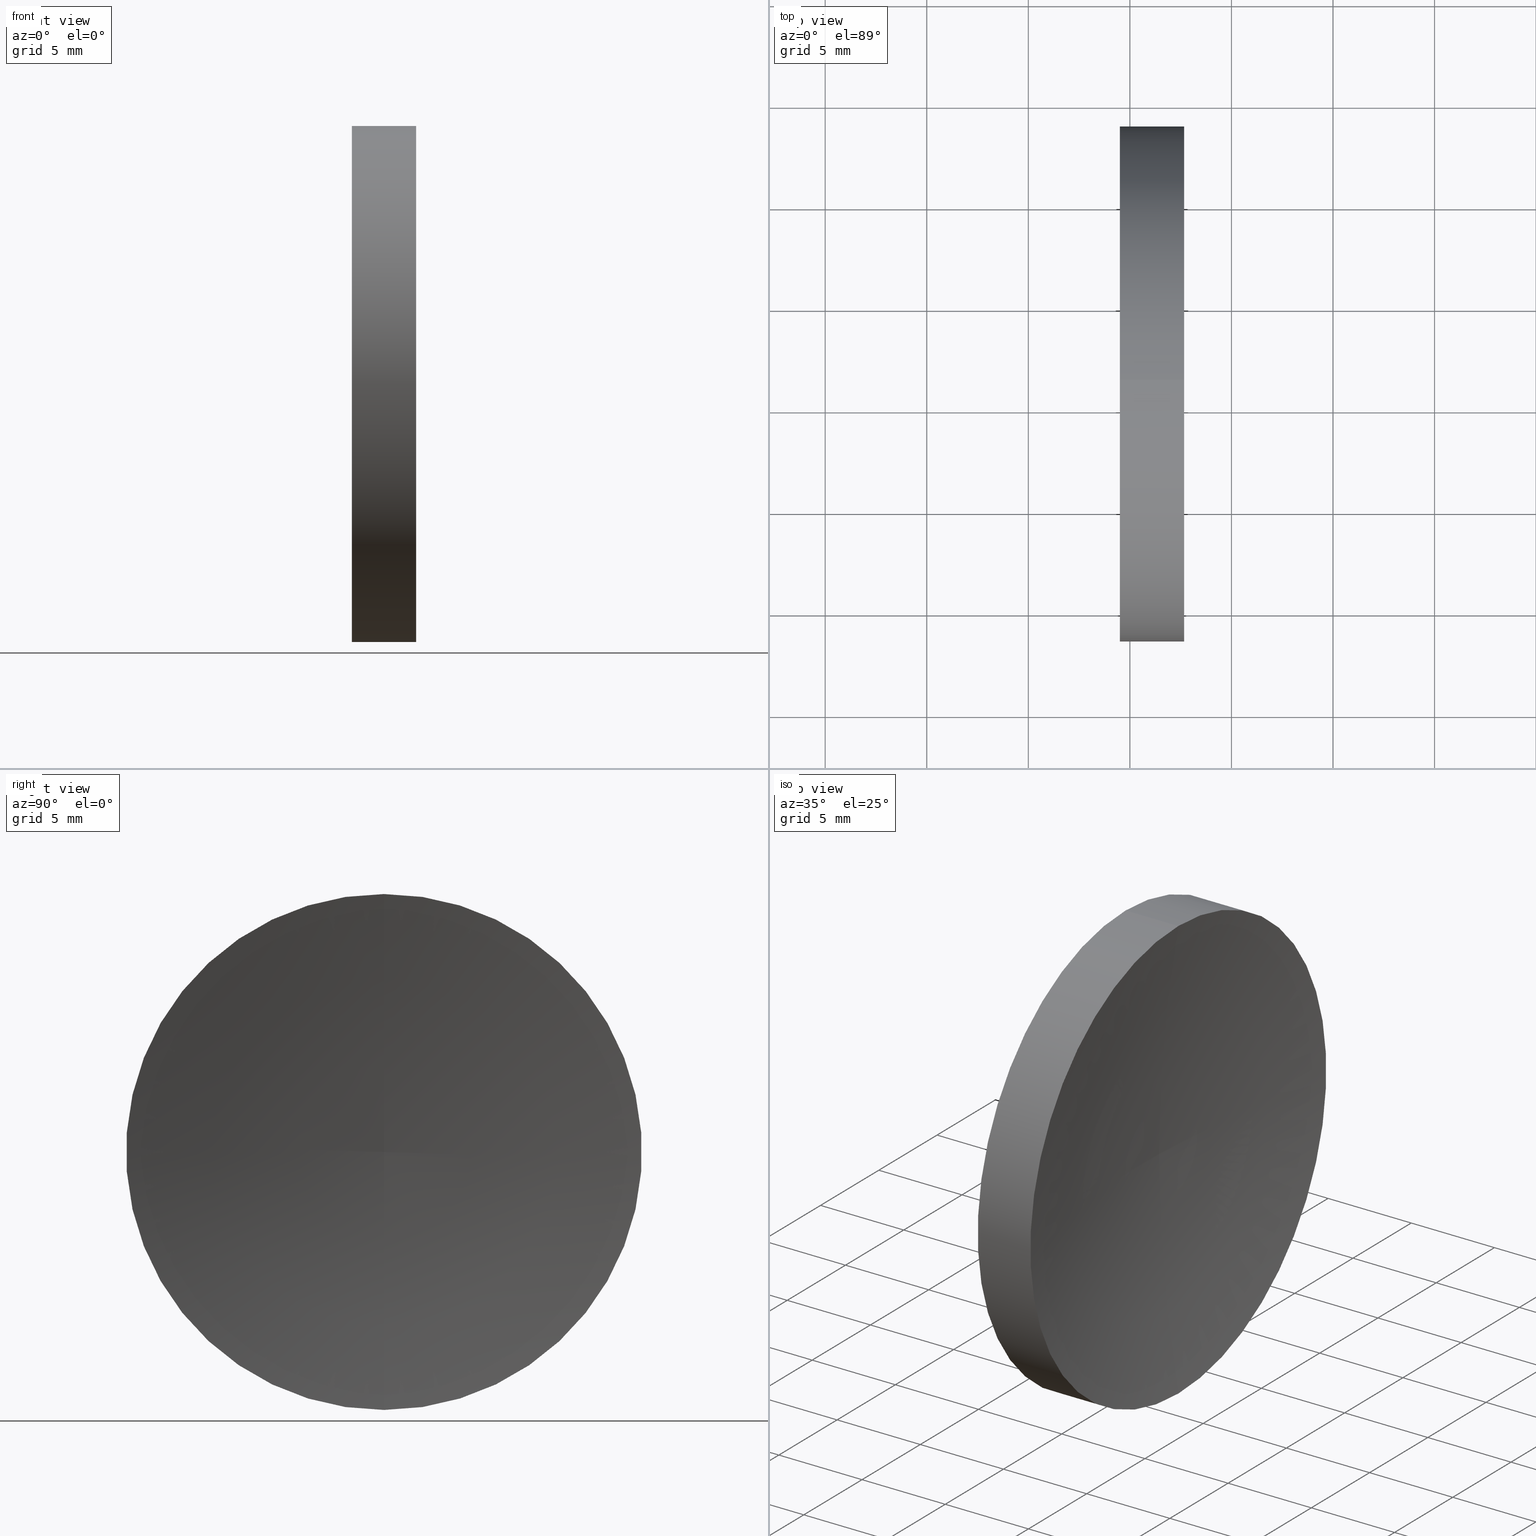
[diagram: canonical four-view strip — front | top / right | iso, engineering-drawing reading convention]
A machine part, canonical four-view strip (front | top / right | iso — engineering-drawing reading convention). The complete STEP part file that produces these views, byte-faithful:
ISO-10303-21;
HEADER;
FILE_DESCRIPTION (( 'STEP AP214' ),
    '1' );
FILE_NAME ('120321.STEP',
    '2019-06-27T02:17:19',
    ( '' ),
    ( '' ),
    'SwSTEP 2.0',
    'SolidWorks 2016',
    '' );
FILE_SCHEMA (( 'AUTOMOTIVE_DESIGN' ));
ENDSEC;

DATA;
#1 = ORIENTED_EDGE ( 'NONE', *, *, #77, .T. ) ;
#2 = CARTESIAN_POINT ( 'NONE',  ( 119.5068341785477100, 71.19398908659370300, 12.70000000000000300 ) ) ;
#3 = EDGE_LOOP ( 'NONE', ( #104, #115, #54, #50 ) ) ;
#4 = CARTESIAN_POINT ( 'NONE',  ( 122.6716689517454700, 71.19398908659370300, 0.0000000000000000000 ) ) ;
#5 = CARTESIAN_POINT ( 'NONE',  ( 0.0000000000000000000, 0.0000000000000000000, 0.0000000000000000000 ) ) ;
#6 =( LENGTH_UNIT ( ) NAMED_UNIT ( * ) SI_UNIT ( .MILLI., .METRE. ) );
#7 = DIRECTION ( 'NONE',  ( 0.0000000000000000000, 0.0000000000000000000, 1.000000000000000000 ) ) ;
#8 = CIRCLE ( 'NONE', #137, 70.09999999999999400 ) ;
#9 = CARTESIAN_POINT ( 'NONE',  ( 122.6716689517454700, 71.19398908659370300, 0.0000000000000000000 ) ) ;
#10 = ORIENTED_EDGE ( 'NONE', *, *, #69, .F. ) ;
#11 = ADVANCED_FACE ( 'NONE', ( #150 ), #147, .F. ) ;
#12 = PRODUCT ( '120321', '120321', '', ( #126 ) ) ;
#13 = LINE ( 'NONE', #106, #140 ) ;
#14 = COLOUR_RGB ( '',1.000000000000000000, 1.000000000000000000, 1.000000000000000000 ) ;
#15 = EDGE_LOOP ( 'NONE', ( #10, #39, #1, #110 ) ) ;
#16 = DIRECTION ( 'NONE',  ( -1.000000000000000000, -0.0000000000000000000, -0.0000000000000000000 ) ) ;
#17 = CIRCLE ( 'NONE', #105, 12.70000000000000300 ) ;
#18 = FILL_AREA_STYLE_COLOUR ( '', #14 ) ;
#19 = CARTESIAN_POINT ( 'NONE',  ( 122.6716689517454700, 71.19398908659370300, -12.69999999999999800 ) ) ;
#20 = ORIENTED_EDGE ( 'NONE', *, *, #59, .F. ) ;
#21 = SURFACE_STYLE_USAGE ( .BOTH. , #138 ) ;
#22 = CARTESIAN_POINT ( 'NONE',  ( 191.6068291606491400, 71.19398908659370300, -0.02610258377575003200 ) ) ;
#23 = PRESENTATION_STYLE_ASSIGNMENT (( #21 ) ) ;
#24 = DIRECTION ( 'NONE',  ( -1.000000000000000000, -0.0000000000000000000, -0.0000000000000000000 ) ) ;
#25 =( NAMED_UNIT ( * ) SI_UNIT ( $, .STERADIAN. ) SOLID_ANGLE_UNIT ( ) );
#26 = VERTEX_POINT ( 'NONE', #92 ) ;
#27 = ADVANCED_FACE ( 'NONE', ( #113 ), #87, .T. ) ;
#28 = EDGE_LOOP ( 'NONE', ( #52, #57 ) ) ;
#29 = AXIS2_PLACEMENT_3D ( 'NONE', #41, #136, #117 ) ;
#30 = DIRECTION ( 'NONE',  ( -1.000000000000000000, -0.0000000000000000000, -0.0000000000000000000 ) ) ;
#31 = CIRCLE ( 'NONE', #53, 12.70000000000000300 ) ;
#32 =( LENGTH_UNIT ( ) NAMED_UNIT ( * ) SI_UNIT ( .MILLI., .METRE. ) );
#33 = SURFACE_STYLE_USAGE ( .BOTH. , #123 ) ;
#34 = DIRECTION ( 'NONE',  ( 0.0000000000000000000, 0.0000000000000000000, 1.000000000000000000 ) ) ;
#35 = EDGE_CURVE ( 'NONE', #48, #83, #17, .T. ) ;
#36 = ORIENTED_EDGE ( 'NONE', *, *, #40, .T. ) ;
#37 = PRODUCT_DEFINITION_CONTEXT ( 'detailed design', #151, 'design' ) ;
#38 = FACE_OUTER_BOUND ( 'NONE', #28, .T. ) ;
#39 = ORIENTED_EDGE ( 'NONE', *, *, #127, .T. ) ;
#40 = EDGE_CURVE ( 'NONE', #145, #135, #45, .T. ) ;
#41 = CARTESIAN_POINT ( 'NONE',  ( 111.9552297575605700, 71.19398908659370300, 0.0000000000000000000 ) ) ;
#42 = PRODUCT_DEFINITION_SHAPE ( 'NONE', 'NONE',  #63 ) ;
#43 = CARTESIAN_POINT ( 'NONE',  ( 191.6068291606491400, 71.19398908659370300, 0.0000000000000000000 ) ) ;
#44 = AXIS2_PLACEMENT_3D ( 'NONE', #107, #82, #134 ) ;
#45 = CIRCLE ( 'NONE', #76, 70.09999999999999400 ) ;
#46 = AXIS2_PLACEMENT_3D ( 'NONE', #9, #24, #7 ) ;
#47 = DIRECTION ( 'NONE',  ( 0.0000000000000000000, 0.0000000000000000000, -1.000000000000000000 ) ) ;
#48 = VERTEX_POINT ( 'NONE', #2 ) ;
#49 = PRESENTATION_LAYER_ASSIGNMENT (  '', '', ( #156 ) ) ;
#50 = ORIENTED_EDGE ( 'NONE', *, *, #77, .F. ) ;
#51 = EDGE_CURVE ( 'NONE', #83, #48, #31, .T. ) ;
#52 = ORIENTED_EDGE ( 'NONE', *, *, #35, .T. ) ;
#53 = AXIS2_PLACEMENT_3D ( 'NONE', #162, #119, #79 ) ;
#54 = ORIENTED_EDGE ( 'NONE', *, *, #35, .F. ) ;
#55 = DIRECTION ( 'NONE',  ( 0.0000000000000000000, 0.0000000000000000000, 1.000000000000000000 ) ) ;
#56 = DIRECTION ( 'NONE',  ( 0.0000000000000000000, 0.0000000000000000000, 1.000000000000000000 ) ) ;
#57 = ORIENTED_EDGE ( 'NONE', *, *, #51, .T. ) ;
#58 = ADVANCED_FACE ( 'NONE', ( #166 ), #128, .F. ) ;
#59 = EDGE_CURVE ( 'NONE', #26, #145, #157, .T. ) ;
#60 = FILL_AREA_STYLE ('',( #18 ) ) ;
#61 = ADVANCED_BREP_SHAPE_REPRESENTATION ( '120321', ( #125, #144 ), #146 ) ;
#62 = EDGE_LOOP ( 'NONE', ( #102, #36, #155 ) ) ;
#63 = PRODUCT_DEFINITION ( 'δ֪', '', #158, #37 ) ;
#64 = UNCERTAINTY_MEASURE_WITH_UNIT (LENGTH_MEASURE( 1.000000000000000100E-005 ), #32, 'distance_accuracy_value', 'NONE');
#65 = DIRECTION ( 'NONE',  ( -1.000000000000000000, -0.0000000000000000000, -0.0000000000000000000 ) ) ;
#66 = DIRECTION ( 'NONE',  ( -1.000000000000000000, -0.0000000000000000000, -0.0000000000000000000 ) ) ;
#67 = CARTESIAN_POINT ( 'NONE',  ( 111.9552297575605700, 71.19398908659370300, 0.0000000000000000000 ) ) ;
#68 = VECTOR ( 'NONE', #66, 1000.000000000000000 ) ;
#69 = EDGE_CURVE ( 'NONE', #145, #83, #90, .T. ) ;
#70 = FILL_AREA_STYLE_COLOUR ( '', #124 ) ;
#71 = ADVANCED_FACE ( 'NONE', ( #73 ), #130, .T. ) ;
#72 = PLANE ( 'NONE',  #132 ) ;
#73 = FACE_OUTER_BOUND ( 'NONE', #15, .T. ) ;
#74 = CIRCLE ( 'NONE', #46, 12.70000000000000300 ) ;
#75 = PRESENTATION_STYLE_ASSIGNMENT (( #33 ) ) ;
#76 = AXIS2_PLACEMENT_3D ( 'NONE', #81, #159, #149 ) ;
#77 = EDGE_CURVE ( 'NONE', #26, #48, #13, .T. ) ;
#78 = MECHANICAL_DESIGN_GEOMETRIC_PRESENTATION_REPRESENTATION (  '', ( #156 ), #89 ) ;
#79 = DIRECTION ( 'NONE',  ( 0.0000000000000000000, 0.0000000000000000000, 1.000000000000000000 ) ) ;
#80 = EDGE_LOOP ( 'NONE', ( #116, #20, #163 ) ) ;
#81 = CARTESIAN_POINT ( 'NONE',  ( 191.6068291606491400, 71.19398908659370300, 0.02610258377575003200 ) ) ;
#82 = DIRECTION ( 'NONE',  ( -1.000000000000000000, -0.0000000000000000000, -0.0000000000000000000 ) ) ;
#83 = VERTEX_POINT ( 'NONE', #94 ) ;
#84 =( NAMED_UNIT ( * ) SI_UNIT ( $, .STERADIAN. ) SOLID_ANGLE_UNIT ( ) );
#85 =( LENGTH_UNIT ( ) NAMED_UNIT ( * ) SI_UNIT ( .MILLI., .METRE. ) );
#86 = DIRECTION ( 'NONE',  ( 0.0000000000000000000, -1.000000000000000000, 0.0000000000000000000 ) ) ;
#87 = CYLINDRICAL_SURFACE ( 'NONE', #98, 12.70000000000000300 ) ;
#88 = SURFACE_STYLE_FILL_AREA ( #164 ) ;
#89 =( GEOMETRIC_REPRESENTATION_CONTEXT ( 3 ) GLOBAL_UNCERTAINTY_ASSIGNED_CONTEXT ( ( #103 ) ) GLOBAL_UNIT_ASSIGNED_CONTEXT ( ( #6, #109, #25 ) ) REPRESENTATION_CONTEXT ( 'NONE', 'WORKASPACE' ) );
#90 = LINE ( 'NONE', #96, #68 ) ;
#91 = MECHANICAL_DESIGN_GEOMETRIC_PRESENTATION_REPRESENTATION (  '', ( #131 ), #129 ) ;
#92 = CARTESIAN_POINT ( 'NONE',  ( 122.6716689517454700, 71.19398908659370300, 12.69999999999999800 ) ) ;
#93 = DIRECTION ( 'NONE',  ( -1.000000000000000000, -0.0000000000000000000, -0.0000000000000000000 ) ) ;
#94 = CARTESIAN_POINT ( 'NONE',  ( 119.5068341785477100, 71.19398908659370300, -12.70000000000000300 ) ) ;
#95 = DIRECTION ( 'NONE',  ( 0.0000000000000000000, 0.0000000000000000000, 1.000000000000000000 ) ) ;
#96 = CARTESIAN_POINT ( 'NONE',  ( 111.9552297575605700, 71.19398908659370300, -12.70000000000000300 ) ) ;
#97 = APPLICATION_PROTOCOL_DEFINITION ( 'draft international standard', 'automotive_design', 1998, #100 ) ;
#98 = AXIS2_PLACEMENT_3D ( 'NONE', #67, #30, #56 ) ;
#99 = APPLICATION_PROTOCOL_DEFINITION ( 'draft international standard', 'automotive_design', 1998, #151 ) ;
#100 = APPLICATION_CONTEXT ( 'automotive_design' ) ;
#101 = DIRECTION ( 'NONE',  ( 0.0000000000000000000, 0.0000000000000000000, -1.000000000000000000 ) ) ;
#102 = ORIENTED_EDGE ( 'NONE', *, *, #127, .F. ) ;
#103 = UNCERTAINTY_MEASURE_WITH_UNIT (LENGTH_MEASURE( 1.000000000000000100E-005 ), #6, 'distance_accuracy_value', 'NONE');
#104 = ORIENTED_EDGE ( 'NONE', *, *, #59, .T. ) ;
#105 = AXIS2_PLACEMENT_3D ( 'NONE', #118, #65, #148 ) ;
#106 = CARTESIAN_POINT ( 'NONE',  ( 111.9552297575605700, 71.19398908659370300, 12.70000000000000300 ) ) ;
#107 = CARTESIAN_POINT ( 'NONE',  ( 191.6068291606491400, 71.19398908659370300, 0.0000000000000000000 ) ) ;
#108 = SHAPE_DEFINITION_REPRESENTATION ( #42, #61 ) ;
#109 =( NAMED_UNIT ( * ) PLANE_ANGLE_UNIT ( ) SI_UNIT ( $, .RADIAN. ) );
#110 = ORIENTED_EDGE ( 'NONE', *, *, #51, .F. ) ;
#111 = CARTESIAN_POINT ( 'NONE',  ( 119.5068341785477100, 71.19398908659370300, 0.0000000000000000000 ) ) ;
#112 = AXIS2_PLACEMENT_3D ( 'NONE', #4, #133, #55 ) ;
#113 = FACE_OUTER_BOUND ( 'NONE', #3, .T. ) ;
#114 = PRODUCT_RELATED_PRODUCT_CATEGORY ( 'part', '', ( #12 ) ) ;
#115 = ORIENTED_EDGE ( 'NONE', *, *, #69, .T. ) ;
#116 = ORIENTED_EDGE ( 'NONE', *, *, #40, .F. ) ;
#117 = DIRECTION ( 'NONE',  ( 0.0000000000000000000, 0.0000000000000000000, 1.000000000000000000 ) ) ;
#118 = CARTESIAN_POINT ( 'NONE',  ( 119.5068341785477100, 71.19398908659370300, 0.0000000000000000000 ) ) ;
#119 = DIRECTION ( 'NONE',  ( -1.000000000000000000, -0.0000000000000000000, -0.0000000000000000000 ) ) ;
#120 = CLOSED_SHELL ( 'NONE', ( #27, #11, #58, #71, #141 ) ) ;
#121 = AXIS2_PLACEMENT_3D ( 'NONE', #43, #16, #95 ) ;
#122 =( NAMED_UNIT ( * ) SI_UNIT ( $, .STERADIAN. ) SOLID_ANGLE_UNIT ( ) );
#123 = SURFACE_SIDE_STYLE ('',( #160 ) ) ;
#124 = COLOUR_RGB ( '',1.000000000000000000, 1.000000000000000000, 1.000000000000000000 ) ;
#125 = MANIFOLD_SOLID_BREP ( '��ת1', #120 ) ;
#126 = PRODUCT_CONTEXT ( 'NONE', #100, 'mechanical' ) ;
#127 = EDGE_CURVE ( 'NONE', #145, #26, #74, .T. ) ;
#128 = TOROIDAL_SURFACE ( 'NONE', #121, -0.02610258377575003200, 70.09999999999999400 ) ;
#129 =( GEOMETRIC_REPRESENTATION_CONTEXT ( 3 ) GLOBAL_UNCERTAINTY_ASSIGNED_CONTEXT ( ( #142 ) ) GLOBAL_UNIT_ASSIGNED_CONTEXT ( ( #85, #165, #122 ) ) REPRESENTATION_CONTEXT ( 'NONE', 'WORKASPACE' ) );
#130 = CYLINDRICAL_SURFACE ( 'NONE', #29, 12.70000000000000300 ) ;
#131 = STYLED_ITEM ( 'NONE', ( #75 ), #125 ) ;
#132 = AXIS2_PLACEMENT_3D ( 'NONE', #111, #139, #101 ) ;
#133 = DIRECTION ( 'NONE',  ( -1.000000000000000000, -0.0000000000000000000, -0.0000000000000000000 ) ) ;
#134 = DIRECTION ( 'NONE',  ( 0.0000000000000000000, 0.0000000000000000000, 1.000000000000000000 ) ) ;
#135 = VERTEX_POINT ( 'NONE', #161 ) ;
#136 = DIRECTION ( 'NONE',  ( -1.000000000000000000, -0.0000000000000000000, -0.0000000000000000000 ) ) ;
#137 = AXIS2_PLACEMENT_3D ( 'NONE', #22, #86, #47 ) ;
#138 = SURFACE_SIDE_STYLE ('',( #88 ) ) ;
#139 = DIRECTION ( 'NONE',  ( 1.000000000000000000, 0.0000000000000000000, 0.0000000000000000000 ) ) ;
#140 = VECTOR ( 'NONE', #93, 1000.000000000000000 ) ;
#141 = ADVANCED_FACE ( 'NONE', ( #38 ), #72, .F. ) ;
#142 = UNCERTAINTY_MEASURE_WITH_UNIT (LENGTH_MEASURE( 1.000000000000000100E-005 ), #85, 'distance_accuracy_value', 'NONE');
#143 = PRESENTATION_LAYER_ASSIGNMENT (  '', '', ( #131 ) ) ;
#144 = AXIS2_PLACEMENT_3D ( 'NONE', #5, #34, #153 ) ;
#145 = VERTEX_POINT ( 'NONE', #19 ) ;
#146 =( GEOMETRIC_REPRESENTATION_CONTEXT ( 3 ) GLOBAL_UNCERTAINTY_ASSIGNED_CONTEXT ( ( #64 ) ) GLOBAL_UNIT_ASSIGNED_CONTEXT ( ( #32, #152, #84 ) ) REPRESENTATION_CONTEXT ( 'NONE', 'WORKASPACE' ) );
#147 = TOROIDAL_SURFACE ( 'NONE', #44, -0.02610258377575003200, 70.09999999999999400 ) ;
#148 = DIRECTION ( 'NONE',  ( 0.0000000000000000000, 0.0000000000000000000, 1.000000000000000000 ) ) ;
#149 = DIRECTION ( 'NONE',  ( 0.0000000000000000000, -1.979712954039152300E-016, 1.000000000000000000 ) ) ;
#150 = FACE_OUTER_BOUND ( 'NONE', #62, .T. ) ;
#151 = APPLICATION_CONTEXT ( 'automotive_design' ) ;
#152 =( NAMED_UNIT ( * ) PLANE_ANGLE_UNIT ( ) SI_UNIT ( $, .RADIAN. ) );
#153 = DIRECTION ( 'NONE',  ( 1.000000000000000000, 0.0000000000000000000, 0.0000000000000000000 ) ) ;
#154 = EDGE_CURVE ( 'NONE', #26, #135, #8, .T. ) ;
#155 = ORIENTED_EDGE ( 'NONE', *, *, #154, .F. ) ;
#156 = STYLED_ITEM ( 'NONE', ( #23 ), #61 ) ;
#157 = CIRCLE ( 'NONE', #112, 12.70000000000000300 ) ;
#158 = PRODUCT_DEFINITION_FORMATION_WITH_SPECIFIED_SOURCE ( '�κ�', '', #12, .NOT_KNOWN. ) ;
#159 = DIRECTION ( 'NONE',  ( -0.0000000000000000000, 1.000000000000000000, 1.224646799147353200E-016 ) ) ;
#160 = SURFACE_STYLE_FILL_AREA ( #60 ) ;
#161 = CARTESIAN_POINT ( 'NONE',  ( 121.5068340204558800, 71.19398908659370300, 0.0000000000000000000 ) ) ;
#162 = CARTESIAN_POINT ( 'NONE',  ( 119.5068341785477100, 71.19398908659370300, 0.0000000000000000000 ) ) ;
#163 = ORIENTED_EDGE ( 'NONE', *, *, #154, .T. ) ;
#164 = FILL_AREA_STYLE ('',( #70 ) ) ;
#165 =( NAMED_UNIT ( * ) PLANE_ANGLE_UNIT ( ) SI_UNIT ( $, .RADIAN. ) );
#166 = FACE_OUTER_BOUND ( 'NONE', #80, .T. ) ;
ENDSEC;
END-ISO-10303-21;
